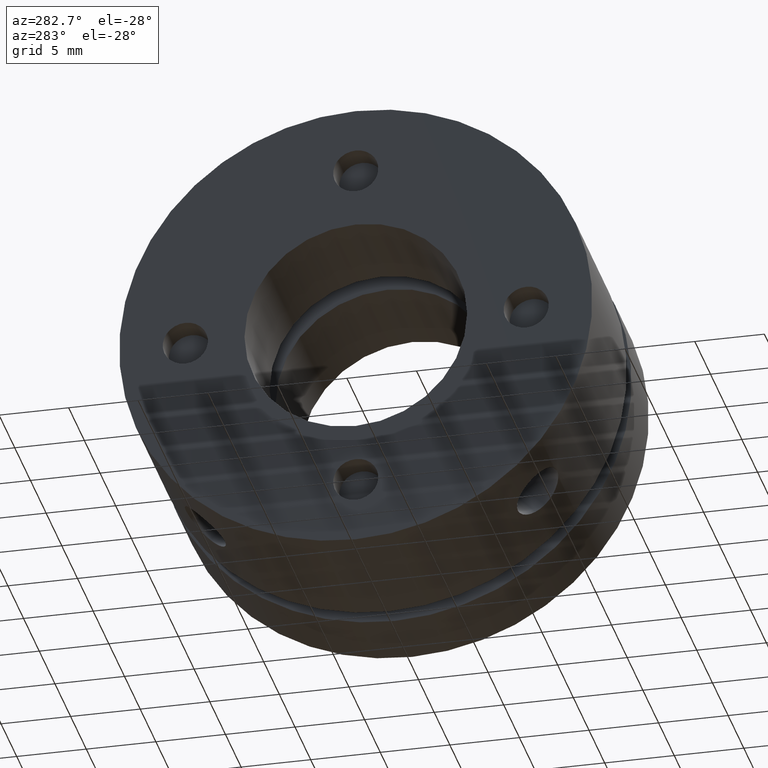
[diagram: clean part render]
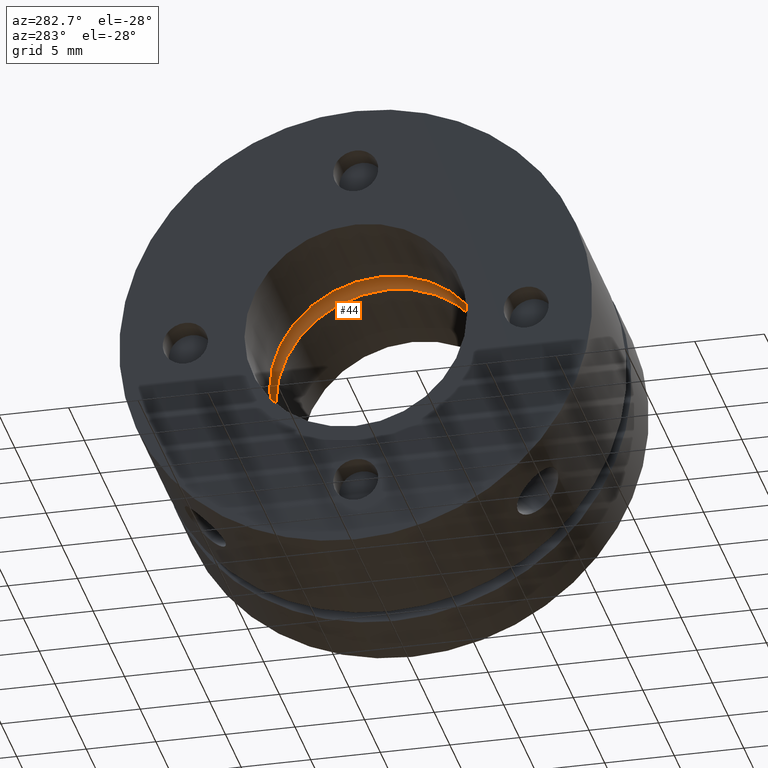
[diagram: same view with one face highlighted and labeled with its STEP entity id]
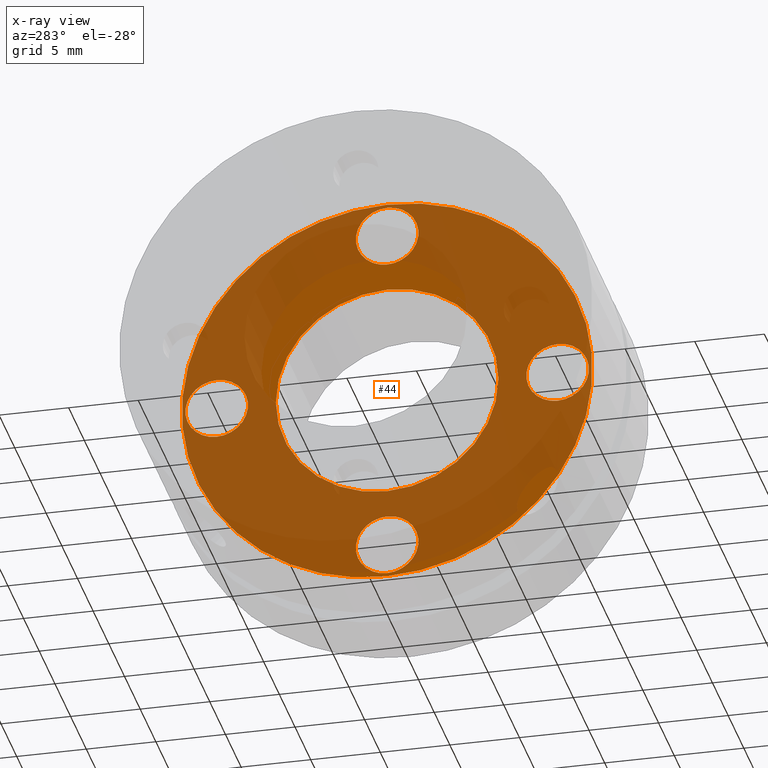
[diagram: x-ray of the same camera — body ghosted, the highlighted face saturated]
A machine part, auxiliary view. The second image highlights one B-rep face of the part: STEP entity #44.
The next image is the same camera in x-ray: the body ghosted, the highlighted face saturated — about 87% of this face is hidden behind the body in this view.
In plain terms, the highlighted planar face has unit normal (1, 0, 0).
Its self-contained STEP definition (entity closure, byte-faithful):
#44 = ADVANCED_FACE ( 'NONE', ( #199, #202, #194, #196, #200, #203 ), #2863, .F. ) ;
#194 = FACE_BOUND ( 'NONE', #2593, .T. ) ;
#196 = FACE_BOUND ( 'NONE', #2612, .T. ) ;
#199 = FACE_BOUND ( 'NONE', #2604, .T. ) ;
#200 = FACE_BOUND ( 'NONE', #2605, .T. ) ;
#202 = FACE_BOUND ( 'NONE', #2611, .T. ) ;
#203 = FACE_OUTER_BOUND ( 'NONE', #2613, .T. ) ;
#463 = AXIS2_PLACEMENT_3D ( 'NONE', #1812, #1813, #1814 ) ;
#495 = AXIS2_PLACEMENT_3D ( 'NONE', #1613, #1614, #1615 ) ;
#566 = AXIS2_PLACEMENT_3D ( 'NONE', #1809, #1810, #1811 ) ;
#591 = DIRECTION ( 'NONE',  ( 1.000000000000000000, 0.0000000000000000000, 0.0000000000000000000 ) ) ;
#594 = AXIS2_PLACEMENT_3D ( 'NONE', #1800, #1801, #1802 ) ;
#628 = AXIS2_PLACEMENT_3D ( 'NONE', #1806, #1807, #1808 ) ;
#629 = AXIS2_PLACEMENT_3D ( 'NONE', #1815, #1816, #1817 ) ;
#635 = AXIS2_PLACEMENT_3D ( 'NONE', #1782, #1783, #1784 ) ;
#685 = AXIS2_PLACEMENT_3D ( 'NONE', #1543, #1544, #1545 ) ;
#687 = AXIS2_PLACEMENT_3D ( 'NONE', #1554, #1555, #1556 ) ;
#690 = AXIS2_PLACEMENT_3D ( 'NONE', #1533, #1534, #1535 ) ;
#691 = AXIS2_PLACEMENT_3D ( 'NONE', #1523, #1524, #1525 ) ;
#692 = AXIS2_PLACEMENT_3D ( 'NONE', #3527, #591, #1225 ) ;
#742 = AXIS2_PLACEMENT_3D ( 'NONE', #2865, #2856, #2867 ) ;
#835 = CIRCLE ( 'NONE', #692, 2.250000000000000400 ) ;
#842 = CIRCLE ( 'NONE', #691, 2.250000000000000400 ) ;
#848 = CIRCLE ( 'NONE', #690, 2.250000000000000400 ) ;
#854 = CIRCLE ( 'NONE', #685, 2.250000000000000400 ) ;
#860 = CIRCLE ( 'NONE', #687, 14.74999999999999800 ) ;
#895 = CIRCLE ( 'NONE', #495, 8.000000000000003600 ) ;
#991 = CIRCLE ( 'NONE', #635, 8.000000000000003600 ) ;
#997 = CIRCLE ( 'NONE', #594, 14.74999999999999800 ) ;
#999 = CIRCLE ( 'NONE', #628, 2.250000000000000400 ) ;
#1000 = CIRCLE ( 'NONE', #566, 2.250000000000000400 ) ;
#1001 = CIRCLE ( 'NONE', #463, 2.250000000000000400 ) ;
#1002 = CIRCLE ( 'NONE', #629, 2.250000000000000400 ) ;
#1225 = DIRECTION ( 'NONE',  ( 0.0000000000000000000, 0.0000000000000000000, -1.000000000000000000 ) ) ;
#1316 = EDGE_CURVE ( 'NONE', #2800, #2689, #835, .T. ) ;
#1320 = EDGE_CURVE ( 'NONE', #2721, #2703, #842, .T. ) ;
#1324 = EDGE_CURVE ( 'NONE', #2769, #2752, #848, .T. ) ;
#1328 = EDGE_CURVE ( 'NONE', #2728, #2681, #854, .T. ) ;
#1332 = EDGE_CURVE ( 'NONE', #2698, #2748, #860, .T. ) ;
#1356 = EDGE_CURVE ( 'NONE', #2670, #2788, #895, .T. ) ;
#1422 = EDGE_CURVE ( 'NONE', #2788, #2670, #991, .T. ) ;
#1428 = EDGE_CURVE ( 'NONE', #2748, #2698, #997, .T. ) ;
#1430 = EDGE_CURVE ( 'NONE', #2689, #2800, #999, .T. ) ;
#1431 = EDGE_CURVE ( 'NONE', #2703, #2721, #1000, .T. ) ;
#1432 = EDGE_CURVE ( 'NONE', #2752, #2769, #1001, .T. ) ;
#1433 = EDGE_CURVE ( 'NONE', #2681, #2728, #1002, .T. ) ;
#1523 = CARTESIAN_POINT ( 'NONE',  ( 9.999999999999998200, -12.25000000000000500, 7.500961999999999900E-016 ) ) ;
#1524 = DIRECTION ( 'NONE',  ( 1.000000000000000000, 0.0000000000000000000, 0.0000000000000000000 ) ) ;
#1525 = DIRECTION ( 'NONE',  ( 0.0000000000000000000, 0.0000000000000000000, -1.000000000000000000 ) ) ;
#1533 = CARTESIAN_POINT ( 'NONE',  ( 9.999999999999998200, -1.500192000000000300E-015, -12.25000000000000500 ) ) ;
#1534 = DIRECTION ( 'NONE',  ( 1.000000000000000000, 0.0000000000000000000, 0.0000000000000000000 ) ) ;
#1535 = DIRECTION ( 'NONE',  ( 0.0000000000000000000, 0.0000000000000000000, -1.000000000000000000 ) ) ;
#1543 = CARTESIAN_POINT ( 'NONE',  ( 9.999999999999998200, 12.25000000000000500, -2.250288000000000100E-015 ) ) ;
#1544 = DIRECTION ( 'NONE',  ( 1.000000000000000000, 0.0000000000000000000, 0.0000000000000000000 ) ) ;
#1545 = DIRECTION ( 'NONE',  ( 0.0000000000000000000, 0.0000000000000000000, -1.000000000000000000 ) ) ;
#1554 = CARTESIAN_POINT ( 'NONE',  ( 10.00000000000001400, 0.0000000000000000000, 0.0000000000000000000 ) ) ;
#1555 = DIRECTION ( 'NONE',  ( 1.000000000000000000, -0.0000000000000000000, -0.0000000000000000000 ) ) ;
#1556 = DIRECTION ( 'NONE',  ( 0.0000000000000000000, 0.0000000000000000000, 1.000000000000000000 ) ) ;
#1613 = CARTESIAN_POINT ( 'NONE',  ( 10.00000000000001600, 0.0000000000000000000, 0.0000000000000000000 ) ) ;
#1614 = DIRECTION ( 'NONE',  ( -1.000000000000000000, -0.0000000000000000000, -0.0000000000000000000 ) ) ;
#1615 = DIRECTION ( 'NONE',  ( 0.0000000000000000000, 0.0000000000000000000, -1.000000000000000000 ) ) ;
#1782 = CARTESIAN_POINT ( 'NONE',  ( 10.00000000000001600, 0.0000000000000000000, 0.0000000000000000000 ) ) ;
#1783 = DIRECTION ( 'NONE',  ( -1.000000000000000000, -0.0000000000000000000, -0.0000000000000000000 ) ) ;
#1784 = DIRECTION ( 'NONE',  ( 0.0000000000000000000, 0.0000000000000000000, -1.000000000000000000 ) ) ;
#1800 = CARTESIAN_POINT ( 'NONE',  ( 10.00000000000001400, 0.0000000000000000000, 0.0000000000000000000 ) ) ;
#1801 = DIRECTION ( 'NONE',  ( 1.000000000000000000, -0.0000000000000000000, -0.0000000000000000000 ) ) ;
#1802 = DIRECTION ( 'NONE',  ( 0.0000000000000000000, 0.0000000000000000000, 1.000000000000000000 ) ) ;
#1806 = CARTESIAN_POINT ( 'NONE',  ( 9.999999999999998200, 0.0000000000000000000, 12.25000000000000500 ) ) ;
#1807 = DIRECTION ( 'NONE',  ( 1.000000000000000000, 0.0000000000000000000, 0.0000000000000000000 ) ) ;
#1808 = DIRECTION ( 'NONE',  ( 0.0000000000000000000, 0.0000000000000000000, -1.000000000000000000 ) ) ;
#1809 = CARTESIAN_POINT ( 'NONE',  ( 9.999999999999998200, -12.25000000000000500, 7.500961999999999900E-016 ) ) ;
#1810 = DIRECTION ( 'NONE',  ( 1.000000000000000000, 0.0000000000000000000, 0.0000000000000000000 ) ) ;
#1811 = DIRECTION ( 'NONE',  ( 0.0000000000000000000, 0.0000000000000000000, -1.000000000000000000 ) ) ;
#1812 = CARTESIAN_POINT ( 'NONE',  ( 9.999999999999998200, -1.500192000000000300E-015, -12.25000000000000500 ) ) ;
#1813 = DIRECTION ( 'NONE',  ( 1.000000000000000000, 0.0000000000000000000, 0.0000000000000000000 ) ) ;
#1814 = DIRECTION ( 'NONE',  ( 0.0000000000000000000, 0.0000000000000000000, -1.000000000000000000 ) ) ;
#1815 = CARTESIAN_POINT ( 'NONE',  ( 9.999999999999998200, 12.25000000000000500, -2.250288000000000100E-015 ) ) ;
#1816 = DIRECTION ( 'NONE',  ( 1.000000000000000000, 0.0000000000000000000, 0.0000000000000000000 ) ) ;
#1817 = DIRECTION ( 'NONE',  ( 0.0000000000000000000, 0.0000000000000000000, -1.000000000000000000 ) ) ;
#1953 = CARTESIAN_POINT ( 'NONE',  ( 10.00000000000001600, 0.0000000000000000000, -8.000000000000003600 ) ) ;
#1964 = CARTESIAN_POINT ( 'NONE',  ( 9.999999999999998200, 12.25000000000000500, -2.250000000000002200 ) ) ;
#1972 = CARTESIAN_POINT ( 'NONE',  ( 9.999999999999998200, 0.0000000000000000000, 10.00000000000000500 ) ) ;
#1981 = CARTESIAN_POINT ( 'NONE',  ( 10.00000000000001400, 0.0000000000000000000, 14.74999999999999800 ) ) ;
#1986 = CARTESIAN_POINT ( 'NONE',  ( 9.999999999999998200, -12.25000000000000500, -2.249999999999999600 ) ) ;
#2004 = CARTESIAN_POINT ( 'NONE',  ( 9.999999999999998200, -12.25000000000000500, 2.250000000000001300 ) ) ;
#2011 = CARTESIAN_POINT ( 'NONE',  ( 9.999999999999998200, 12.25000000000000500, 2.249999999999998200 ) ) ;
#2031 = CARTESIAN_POINT ( 'NONE',  ( 10.00000000000001400, 1.806354028742345800E-015, -14.74999999999999800 ) ) ;
#2035 = CARTESIAN_POINT ( 'NONE',  ( 9.999999999999998200, -1.500192000000000300E-015, -14.50000000000000500 ) ) ;
#2052 = CARTESIAN_POINT ( 'NONE',  ( 9.999999999999998200, -1.224646470191845800E-015, -10.00000000000000500 ) ) ;
#2071 = CARTESIAN_POINT ( 'NONE',  ( 10.00000000000001600, 9.797174393178831600E-016, 8.000000000000003600 ) ) ;
#2083 = CARTESIAN_POINT ( 'NONE',  ( 9.999999999999998200, 2.755455298081544800E-016, 14.50000000000000500 ) ) ;
#2449 = ORIENTED_EDGE ( 'NONE', *, *, #1356, .F. ) ;
#2457 = ORIENTED_EDGE ( 'NONE', *, *, #1428, .F. ) ;
#2458 = ORIENTED_EDGE ( 'NONE', *, *, #1328, .T. ) ;
#2459 = ORIENTED_EDGE ( 'NONE', *, *, #1332, .F. ) ;
#2481 = ORIENTED_EDGE ( 'NONE', *, *, #1324, .T. ) ;
#2482 = ORIENTED_EDGE ( 'NONE', *, *, #1433, .T. ) ;
#2483 = ORIENTED_EDGE ( 'NONE', *, *, #1316, .T. ) ;
#2484 = ORIENTED_EDGE ( 'NONE', *, *, #1431, .T. ) ;
#2485 = ORIENTED_EDGE ( 'NONE', *, *, #1320, .T. ) ;
#2486 = ORIENTED_EDGE ( 'NONE', *, *, #1432, .T. ) ;
#2487 = ORIENTED_EDGE ( 'NONE', *, *, #1430, .T. ) ;
#2489 = ORIENTED_EDGE ( 'NONE', *, *, #1422, .F. ) ;
#2593 = EDGE_LOOP ( 'NONE', ( #2484, #2485 ) ) ;
#2604 = EDGE_LOOP ( 'NONE', ( #2449, #2489 ) ) ;
#2605 = EDGE_LOOP ( 'NONE', ( #2482, #2458 ) ) ;
#2611 = EDGE_LOOP ( 'NONE', ( #2487, #2483 ) ) ;
#2612 = EDGE_LOOP ( 'NONE', ( #2486, #2481 ) ) ;
#2613 = EDGE_LOOP ( 'NONE', ( #2459, #2457 ) ) ;
#2670 = VERTEX_POINT ( 'NONE', #1953 ) ;
#2681 = VERTEX_POINT ( 'NONE', #1964 ) ;
#2689 = VERTEX_POINT ( 'NONE', #1972 ) ;
#2698 = VERTEX_POINT ( 'NONE', #1981 ) ;
#2703 = VERTEX_POINT ( 'NONE', #1986 ) ;
#2721 = VERTEX_POINT ( 'NONE', #2004 ) ;
#2728 = VERTEX_POINT ( 'NONE', #2011 ) ;
#2748 = VERTEX_POINT ( 'NONE', #2031 ) ;
#2752 = VERTEX_POINT ( 'NONE', #2035 ) ;
#2769 = VERTEX_POINT ( 'NONE', #2052 ) ;
#2788 = VERTEX_POINT ( 'NONE', #2071 ) ;
#2800 = VERTEX_POINT ( 'NONE', #2083 ) ;
#2856 = DIRECTION ( 'NONE',  ( 1.000000000000000000, -0.0000000000000000000, 0.0000000000000000000 ) ) ;
#2863 = PLANE ( 'NONE',  #742 ) ;
#2865 = CARTESIAN_POINT ( 'NONE',  ( 10.00000000000001600, 7.375000000000000000, 0.0000000000000000000 ) ) ;
#2867 = DIRECTION ( 'NONE',  ( 0.0000000000000000000, 0.0000000000000000000, -1.000000000000000000 ) ) ;
#3527 = CARTESIAN_POINT ( 'NONE',  ( 9.999999999999998200, 0.0000000000000000000, 12.25000000000000500 ) ) ;